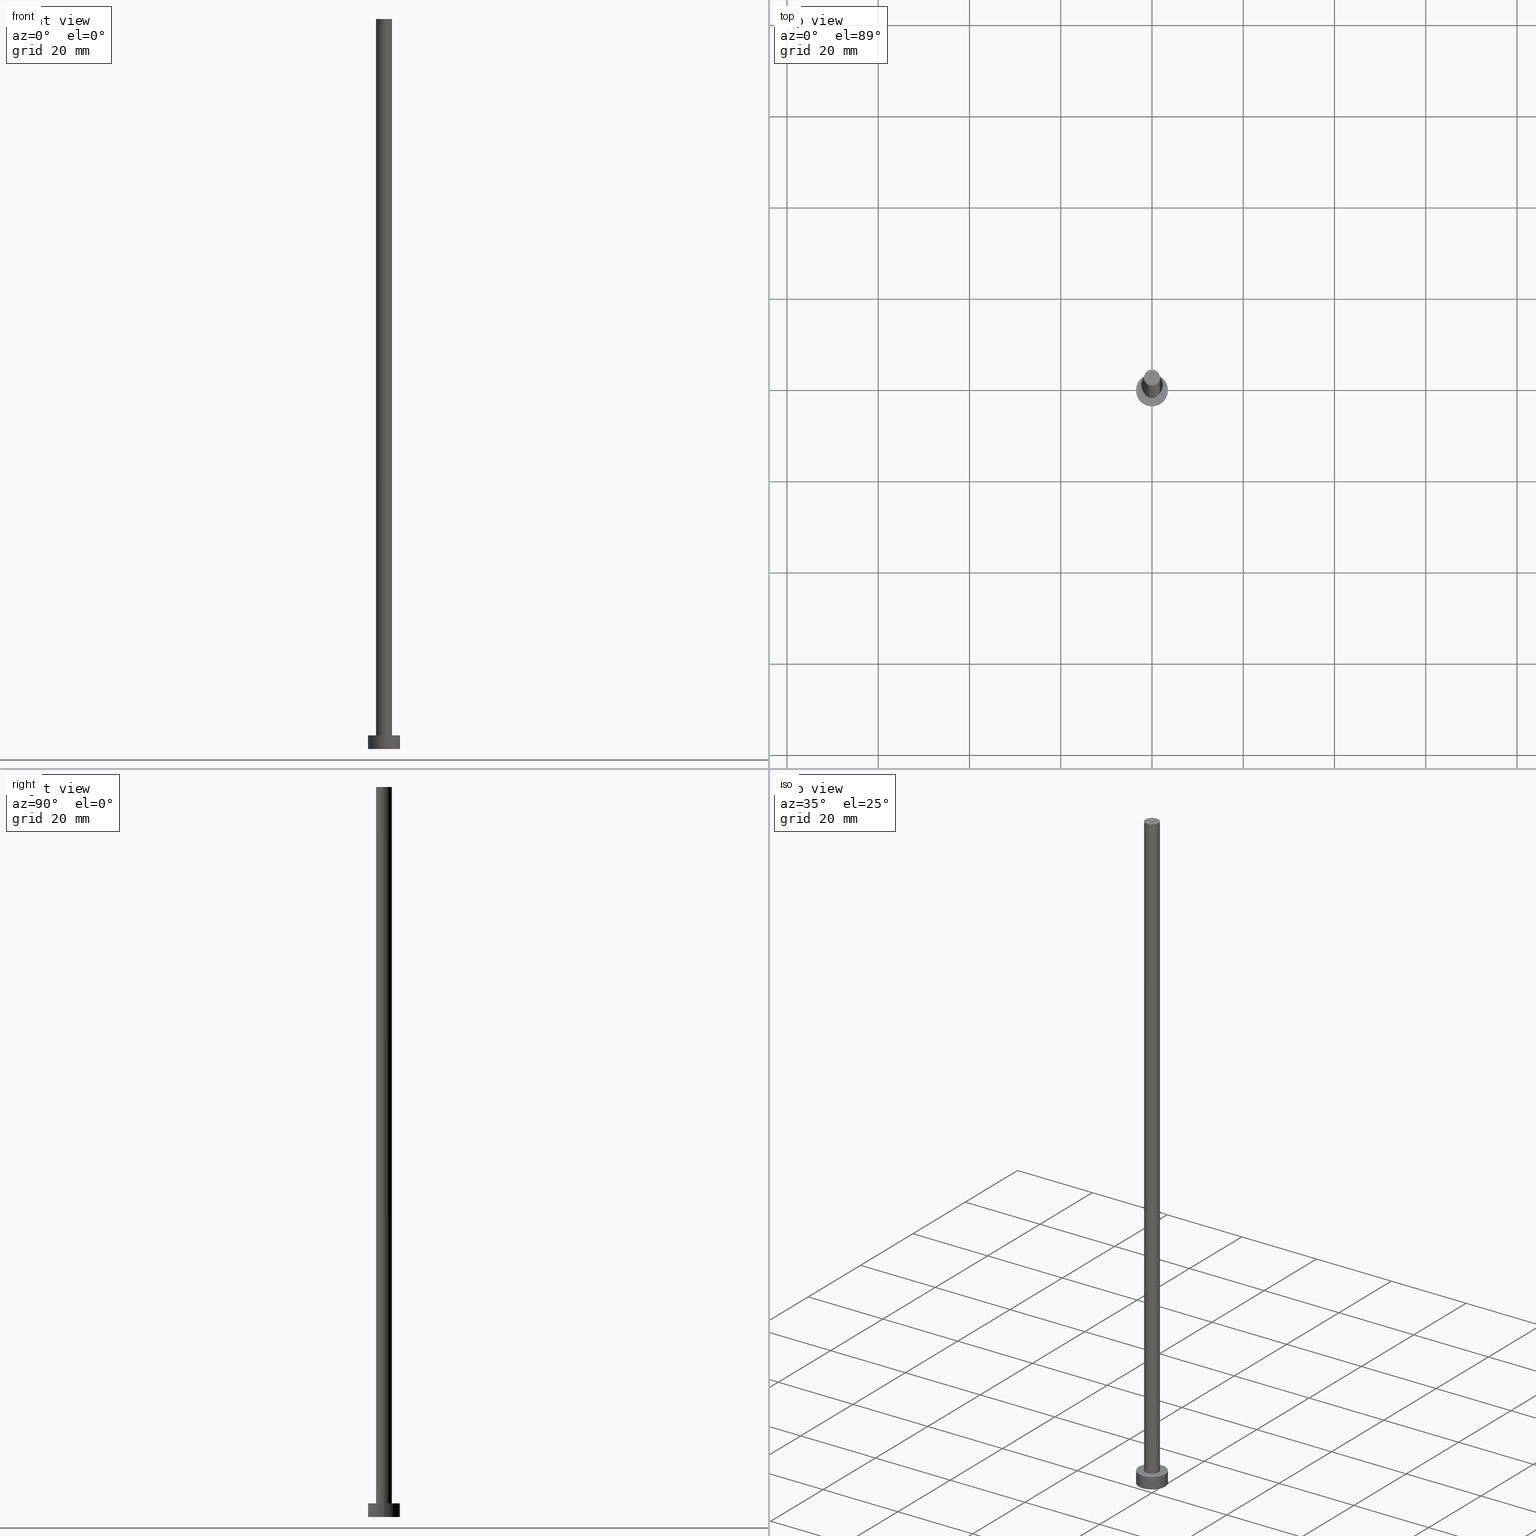
[diagram: canonical four-view strip — front | top / right | iso, engineering-drawing reading convention]
A machine part, canonical four-view strip (front | top / right | iso — engineering-drawing reading convention). The complete STEP part file that produces these views, byte-faithful:
ISO-10303-21;
HEADER;
FILE_DESCRIPTION (( 'STEP AP203' ),
    '1' );
FILE_NAME ('0961.STEP',
    '2023-02-13T16:23:46',
    ( '' ),
    ( '' ),
    'SwSTEP 2.0',
    'SolidWorks 2019',
    '' );
FILE_SCHEMA (( 'CONFIG_CONTROL_DESIGN' ));
ENDSEC;

DATA;
#1 = LINE ( 'NONE', #70, #68 ) ;
#2 = CC_DESIGN_PERSON_AND_ORGANIZATION_ASSIGNMENT ( #127, #28, ( #182 ) ) ;
#3 = ADVANCED_FACE ( 'NONE', ( #18 ), #232, .T. ) ;
#4 = DIRECTION ( 'NONE',  ( 1.000000000000000000, 0.000000000000000000, 0.000000000000000000 ) ) ;
#5 = DIRECTION ( 'NONE',  ( 1.000000000000000000, 0.000000000000000000, 0.000000000000000000 ) ) ;
#6 = COORDINATED_UNIVERSAL_TIME_OFFSET ( 1, 0, .AHEAD. ) ;
#7 = DATE_AND_TIME ( #26, #22 ) ;
#8 = CIRCLE ( 'NONE', #241, 1.750000000000000000 ) ;
#9 = EDGE_CURVE ( 'NONE', #39, #59, #228, .T. ) ;
#10 = ORIENTED_EDGE ( 'NONE', *, *, #132, .F. ) ;
#11 = LOCAL_TIME ( 17, 23, 46.00000000000000000, #168 ) ;
#12 = CC_DESIGN_SECURITY_CLASSIFICATION ( #144, ( #182 ) ) ;
#13 = PRODUCT ( '0961', '0961', '', ( #191 ) ) ;
#14 = DIRECTION ( 'NONE',  ( 0.000000000000000000, 0.000000000000000000, 1.000000000000000000 ) ) ;
#15 = FACE_OUTER_BOUND ( 'NONE', #117, .T. ) ;
#16 = ORIENTED_EDGE ( 'NONE', *, *, #91, .F. ) ;
#17 = CIRCLE ( 'NONE', #60, 1.750000000000000000 ) ;
#18 = FACE_OUTER_BOUND ( 'NONE', #154, .T. ) ;
#19 = DIRECTION ( 'NONE',  ( 0.000000000000000000, 0.000000000000000000, 1.000000000000000000 ) ) ;
#20 = CC_DESIGN_PERSON_AND_ORGANIZATION_ASSIGNMENT ( #49, #221, ( #13 ) ) ;
#21 =( LENGTH_UNIT ( ) NAMED_UNIT ( * ) SI_UNIT ( .MILLI., .METRE. ) );
#22 = LOCAL_TIME ( 17, 23, 46.00000000000000000, #29 ) ;
#23 = CARTESIAN_POINT ( 'NONE',  ( 0.000000000000000000, 0.000000000000000000, 160.0000000000000000 ) ) ;
#24 = DIRECTION ( 'NONE',  ( -0.000000000000000000, -0.000000000000000000, -1.000000000000000000 ) ) ;
#25 = DIRECTION ( 'NONE',  ( 0.000000000000000000, 0.000000000000000000, 1.000000000000000000 ) ) ;
#26 = CALENDAR_DATE ( 2023, 13, 2 ) ;
#27 = AXIS2_PLACEMENT_3D ( 'NONE', #253, #87, #123 ) ;
#28 = PERSON_AND_ORGANIZATION_ROLE ( 'design_supplier' ) ;
#29 = COORDINATED_UNIVERSAL_TIME_OFFSET ( 1, 0, .AHEAD. ) ;
#30 = EDGE_CURVE ( 'NONE', #153, #195, #99, .T. ) ;
#31 = LOCAL_TIME ( 17, 23, 46.00000000000000000, #189 ) ;
#32 = DATE_TIME_ROLE ( 'classification_date' ) ;
#33 = PRODUCT_RELATED_PRODUCT_CATEGORY ( 'detail', '', ( #13 ) ) ;
#34 = DIRECTION ( 'NONE',  ( -0.000000000000000000, -0.000000000000000000, -1.000000000000000000 ) ) ;
#35 = ORIENTED_EDGE ( 'NONE', *, *, #65, .F. ) ;
#36 = LOCAL_TIME ( 17, 23, 46.00000000000000000, #89 ) ;
#37 = EDGE_LOOP ( 'NONE', ( #63, #159 ) ) ;
#38 = ORIENTED_EDGE ( 'NONE', *, *, #139, .F. ) ;
#39 = VERTEX_POINT ( 'NONE', #157 ) ;
#40 = FACE_OUTER_BOUND ( 'NONE', #78, .T. ) ;
#41 = CARTESIAN_POINT ( 'NONE',  ( 0.000000000000000000, 0.000000000000000000, 160.0000000000000000 ) ) ;
#42 = ADVANCED_FACE ( 'NONE', ( #61 ), #113, .T. ) ;
#43 = PRODUCT_DEFINITION_SHAPE ( 'NONE', 'NONE',  #227 ) ;
#44 =( NAMED_UNIT ( * ) SI_UNIT ( $, .STERADIAN. ) SOLID_ANGLE_UNIT ( ) );
#45 = AXIS2_PLACEMENT_3D ( 'NONE', #219, #218, #143 ) ;
#46 = CARTESIAN_POINT ( 'NONE',  ( 0.000000000000000000, 0.000000000000000000, 160.0000000000000000 ) ) ;
#47 = CYLINDRICAL_SURFACE ( 'NONE', #27, 3.500000000000000000 ) ;
#48 = PERSON_AND_ORGANIZATION_ROLE ( 'creator' ) ;
#49 = PERSON_AND_ORGANIZATION ( #85, #235 ) ;
#50 = AXIS2_PLACEMENT_3D ( 'NONE', #64, #237, #5 ) ;
#51 = EDGE_CURVE ( 'NONE', #195, #158, #203, .T. ) ;
#52 = DATE_AND_TIME ( #73, #243 ) ;
#53 = MANIFOLD_SOLID_BREP ( 'P�idat vysunut�m3', #128 ) ;
#54 = PERSON_AND_ORGANIZATION ( #85, #235 ) ;
#55 = DATE_AND_TIME ( #75, #11 ) ;
#56 = AXIS2_PLACEMENT_3D ( 'NONE', #201, #86, #183 ) ;
#57 = ORIENTED_EDGE ( 'NONE', *, *, #9, .F. ) ;
#58 = DIRECTION ( 'NONE',  ( 1.000000000000000000, 0.000000000000000000, 0.000000000000000000 ) ) ;
#59 = VERTEX_POINT ( 'NONE', #131 ) ;
#60 = AXIS2_PLACEMENT_3D ( 'NONE', #198, #19, #4 ) ;
#61 = FACE_OUTER_BOUND ( 'NONE', #196, .T. ) ;
#62 = ORIENTED_EDGE ( 'NONE', *, *, #65, .T. ) ;
#63 = ORIENTED_EDGE ( 'NONE', *, *, #108, .F. ) ;
#64 = CARTESIAN_POINT ( 'NONE',  ( 0.000000000000000000, 0.000000000000000000, 0.000000000000000000 ) ) ;
#65 = EDGE_CURVE ( 'NONE', #177, #153, #96, .T. ) ;
#66 = CYLINDRICAL_SURFACE ( 'NONE', #140, 1.750000000000000000 ) ;
#67 =( NAMED_UNIT ( * ) PLANE_ANGLE_UNIT ( ) SI_UNIT ( $, .RADIAN. ) );
#68 = VECTOR ( 'NONE', #24, 1000.000000000000000 ) ;
#69 = DIRECTION ( 'NONE',  ( 1.000000000000000000, 0.000000000000000000, 0.000000000000000000 ) ) ;
#70 = CARTESIAN_POINT ( 'NONE',  ( 3.500000000000000000, 4.286263797015736595E-16, 3.000000000000000000 ) ) ;
#71 = ADVANCED_FACE ( 'NONE', ( #15 ), #98, .F. ) ;
#72 = APPROVAL_DATE_TIME ( #55, #103 ) ;
#73 = CALENDAR_DATE ( 2023, 13, 2 ) ;
#74 = APPROVAL ( #92, 'NEUR�EN�' ) ;
#75 = CALENDAR_DATE ( 2023, 13, 2 ) ;
#76 = AXIS2_PLACEMENT_3D ( 'NONE', #248, #135, #217 ) ;
#77 = ORIENTED_EDGE ( 'NONE', *, *, #202, .T. ) ;
#78 = EDGE_LOOP ( 'NONE', ( #197, #79, #115, #187 ) ) ;
#79 = ORIENTED_EDGE ( 'NONE', *, *, #93, .F. ) ;
#80 = CIRCLE ( 'NONE', #50, 3.500000000000000000 ) ;
#81 = ORIENTED_EDGE ( 'NONE', *, *, #139, .T. ) ;
#82 = ORIENTED_EDGE ( 'NONE', *, *, #91, .T. ) ;
#83 = CARTESIAN_POINT ( 'NONE',  ( -1.750000000000000000, 0.000000000000000000, 160.0000000000000000 ) ) ;
#84 = DIRECTION ( 'NONE',  ( -0.000000000000000000, -0.000000000000000000, -1.000000000000000000 ) ) ;
#85 = PERSON ( 'NEUR�EN�', 'NEUR�EN�', 'NEUR�EN�', ('NEUR�EN�'), ('NEUR�EN�'), ('NEUR�EN�') ) ;
#86 = DIRECTION ( 'NONE',  ( 0.000000000000000000, 0.000000000000000000, 1.000000000000000000 ) ) ;
#87 = DIRECTION ( 'NONE',  ( -0.000000000000000000, -0.000000000000000000, -1.000000000000000000 ) ) ;
#88 = APPLICATION_CONTEXT ( 'configuration controlled 3d designs of mechanical parts and assemblies' ) ;
#89 = COORDINATED_UNIVERSAL_TIME_OFFSET ( 1, 0, .AHEAD. ) ;
#90 = APPROVAL_DATE_TIME ( #7, #105 ) ;
#91 = EDGE_CURVE ( 'NONE', #194, #39, #8, .T. ) ;
#92 = APPROVAL_STATUS ( 'not_yet_approved' ) ;
#93 = EDGE_CURVE ( 'NONE', #153, #177, #156, .T. ) ;
#94 = CARTESIAN_POINT ( 'NONE',  ( 0.000000000000000000, 0.000000000000000000, 0.000000000000000000 ) ) ;
#95 = APPLICATION_PROTOCOL_DEFINITION ( 'international standard', 'config_control_design', 1994, #124 ) ;
#96 = CIRCLE ( 'NONE', #176, 3.500000000000000000 ) ;
#97 = CARTESIAN_POINT ( 'NONE',  ( 0.000000000000000000, 0.000000000000000000, 160.0000000000000000 ) ) ;
#98 = PLANE ( 'NONE',  #76 ) ;
#99 = LINE ( 'NONE', #229, #100 ) ;
#100 = VECTOR ( 'NONE', #34, 1000.000000000000000 ) ;
#101 = CARTESIAN_POINT ( 'NONE',  ( 1.750000000000000000, 2.143131898507868297E-16, 160.0000000000000000 ) ) ;
#102 = DIRECTION ( 'NONE',  ( 0.000000000000000000, 0.000000000000000000, 1.000000000000000000 ) ) ;
#103 = APPROVAL ( #204, 'NEUR�EN�' ) ;
#104 = APPROVAL_PERSON_ORGANIZATION ( #206, #74, #150 ) ;
#105 = APPROVAL ( #146, 'NEUR�EN�' ) ;
#106 = DIRECTION ( 'NONE',  ( -0.000000000000000000, -0.000000000000000000, -1.000000000000000000 ) ) ;
#107 = CARTESIAN_POINT ( 'NONE',  ( 3.500000000000000000, 4.286263797015736595E-16, 3.000000000000000000 ) ) ;
#108 = EDGE_CURVE ( 'NONE', #247, #59, #163, .T. ) ;
#109 = DIRECTION ( 'NONE',  ( 0.000000000000000000, 0.000000000000000000, 1.000000000000000000 ) ) ;
#110 = ORIENTED_EDGE ( 'NONE', *, *, #93, .T. ) ;
#111 = PERSON_AND_ORGANIZATION_ROLE ( 'classification_officer' ) ;
#112 = DATE_AND_TIME ( #188, #36 ) ;
#113 = PLANE ( 'NONE',  #121 ) ;
#114 = APPROVAL_PERSON_ORGANIZATION ( #224, #103, #205 ) ;
#115 = ORIENTED_EDGE ( 'NONE', *, *, #30, .T. ) ;
#116 = ORIENTED_EDGE ( 'NONE', *, *, #132, .T. ) ;
#117 = EDGE_LOOP ( 'NONE', ( #250, #175 ) ) ;
#118 = EDGE_LOOP ( 'NONE', ( #57, #16, #116, #251 ) ) ;
#119 = DIRECTION ( 'NONE',  ( -1.000000000000000000, 0.000000000000000000, 0.000000000000000000 ) ) ;
#120 = CYLINDRICAL_SURFACE ( 'NONE', #211, 3.500000000000000000 ) ;
#121 = AXIS2_PLACEMENT_3D ( 'NONE', #97, #173, #226 ) ;
#122 = FACE_OUTER_BOUND ( 'NONE', #214, .T. ) ;
#123 = DIRECTION ( 'NONE',  ( -1.000000000000000000, 0.000000000000000000, 0.000000000000000000 ) ) ;
#124 = APPLICATION_CONTEXT ( 'configuration controlled 3d designs of mechanical parts and assemblies' ) ;
#125 = DATE_TIME_ROLE ( 'creation_date' ) ;
#126 = DATE_AND_TIME ( #244, #31 ) ;
#127 = PERSON_AND_ORGANIZATION ( #85, #235 ) ;
#128 = CLOSED_SHELL ( 'NONE', ( #3, #148, #252, #130, #71, #181, #42 ) ) ;
#129 = EDGE_CURVE ( 'NONE', #59, #247, #17, .T. ) ;
#130 = ADVANCED_FACE ( 'NONE', ( #145, #240 ), #236, .T. ) ;
#131 = CARTESIAN_POINT ( 'NONE',  ( 1.750000000000000000, 2.143131898507868297E-16, 3.000000000000000000 ) ) ;
#132 = EDGE_CURVE ( 'NONE', #194, #247, #255, .T. ) ;
#133 = APPROVAL_PERSON_ORGANIZATION ( #192, #105, #149 ) ;
#134 = CARTESIAN_POINT ( 'NONE',  ( 0.000000000000000000, 0.000000000000000000, 0.000000000000000000 ) ) ;
#135 = DIRECTION ( 'NONE',  ( 0.000000000000000000, 0.000000000000000000, 1.000000000000000000 ) ) ;
#136 = DESIGN_CONTEXT ( 'detailed design', #124, 'design' ) ;
#137 = ORIENTED_EDGE ( 'NONE', *, *, #30, .F. ) ;
#138 = DIRECTION ( 'NONE',  ( -0.000000000000000000, -0.000000000000000000, -1.000000000000000000 ) ) ;
#139 = EDGE_CURVE ( 'NONE', #39, #194, #234, .T. ) ;
#140 = AXIS2_PLACEMENT_3D ( 'NONE', #41, #106, #184 ) ;
#141 = CARTESIAN_POINT ( 'NONE',  ( 3.500000000000000000, 4.286263797015736595E-16, 0.000000000000000000 ) ) ;
#142 = CARTESIAN_POINT ( 'NONE',  ( -1.750000000000000000, 0.000000000000000000, 3.000000000000000000 ) ) ;
#143 = DIRECTION ( 'NONE',  ( 1.000000000000000000, 0.000000000000000000, 0.000000000000000000 ) ) ;
#144 = SECURITY_CLASSIFICATION ( '', '', #165 ) ;
#145 = FACE_BOUND ( 'NONE', #37, .T. ) ;
#146 = APPROVAL_STATUS ( 'not_yet_approved' ) ;
#147 = CC_DESIGN_DATE_AND_TIME_ASSIGNMENT ( #112, #125, ( #227 ) ) ;
#148 = ADVANCED_FACE ( 'NONE', ( #122 ), #47, .T. ) ;
#149 = APPROVAL_ROLE ( '' ) ;
#150 = APPROVAL_ROLE ( '' ) ;
#151 = PERSON_AND_ORGANIZATION_ROLE ( 'creator' ) ;
#152 = AXIS2_PLACEMENT_3D ( 'NONE', #213, #178, #155 ) ;
#153 = VERTEX_POINT ( 'NONE', #200 ) ;
#154 = EDGE_LOOP ( 'NONE', ( #38, #208, #231, #10 ) ) ;
#155 = DIRECTION ( 'NONE',  ( -1.000000000000000000, 0.000000000000000000, 0.000000000000000000 ) ) ;
#156 = CIRCLE ( 'NONE', #45, 3.500000000000000000 ) ;
#157 = CARTESIAN_POINT ( 'NONE',  ( 1.750000000000000000, 2.143131898507868297E-16, 160.0000000000000000 ) ) ;
#158 = VERTEX_POINT ( 'NONE', #141 ) ;
#159 = ORIENTED_EDGE ( 'NONE', *, *, #129, .F. ) ;
#160 = DIRECTION ( 'NONE',  ( 1.000000000000000000, 0.000000000000000000, 0.000000000000000000 ) ) ;
#161 = VECTOR ( 'NONE', #138, 1000.000000000000000 ) ;
#162 = DIRECTION ( 'NONE',  ( 1.000000000000000000, 0.000000000000000000, -0.000000000000000000 ) ) ;
#163 = CIRCLE ( 'NONE', #56, 1.750000000000000000 ) ;
#164 = CARTESIAN_POINT ( 'NONE',  ( -3.500000000000000000, 0.000000000000000000, 0.000000000000000000 ) ) ;
#165 = SECURITY_CLASSIFICATION_LEVEL ( 'unclassified' ) ;
#166 = SHAPE_DEFINITION_REPRESENTATION ( #43, #238 ) ;
#167 = CC_DESIGN_APPROVAL ( #105, ( #144 ) ) ;
#168 = COORDINATED_UNIVERSAL_TIME_OFFSET ( 1, 0, .AHEAD. ) ;
#169 = CC_DESIGN_DATE_AND_TIME_ASSIGNMENT ( #126, #32, ( #144 ) ) ;
#170 = DIRECTION ( 'NONE',  ( 1.000000000000000000, 0.000000000000000000, 0.000000000000000000 ) ) ;
#171 = PERSON_AND_ORGANIZATION ( #85, #235 ) ;
#172 = AXIS2_PLACEMENT_3D ( 'NONE', #94, #109, #170 ) ;
#173 = DIRECTION ( 'NONE',  ( 0.000000000000000000, 0.000000000000000000, 1.000000000000000000 ) ) ;
#174 = ORIENTED_EDGE ( 'NONE', *, *, #209, .T. ) ;
#175 = ORIENTED_EDGE ( 'NONE', *, *, #202, .F. ) ;
#176 = AXIS2_PLACEMENT_3D ( 'NONE', #210, #14, #212 ) ;
#177 = VERTEX_POINT ( 'NONE', #107 ) ;
#178 = DIRECTION ( 'NONE',  ( -0.000000000000000000, -0.000000000000000000, -1.000000000000000000 ) ) ;
#179 = DIRECTION ( 'NONE',  ( 0.000000000000000000, 0.000000000000000000, 1.000000000000000000 ) ) ;
#180 = CARTESIAN_POINT ( 'NONE',  ( 0.000000000000000000, 0.000000000000000000, 3.000000000000000000 ) ) ;
#181 = ADVANCED_FACE ( 'NONE', ( #242 ), #66, .T. ) ;
#182 = PRODUCT_DEFINITION_FORMATION_WITH_SPECIFIED_SOURCE ( 'LIBOVOLN�', '', #13, .NOT_KNOWN. ) ;
#183 = DIRECTION ( 'NONE',  ( 1.000000000000000000, 0.000000000000000000, 0.000000000000000000 ) ) ;
#184 = DIRECTION ( 'NONE',  ( -1.000000000000000000, 0.000000000000000000, 0.000000000000000000 ) ) ;
#185 = CARTESIAN_POINT ( 'NONE',  ( -1.750000000000000000, 0.000000000000000000, 160.0000000000000000 ) ) ;
#186 = AXIS2_PLACEMENT_3D ( 'NONE', #134, #246, #58 ) ;
#187 = ORIENTED_EDGE ( 'NONE', *, *, #51, .T. ) ;
#188 = CALENDAR_DATE ( 2023, 13, 2 ) ;
#189 = COORDINATED_UNIVERSAL_TIME_OFFSET ( 1, 0, .AHEAD. ) ;
#190 = VECTOR ( 'NONE', #215, 1000.000000000000000 ) ;
#191 = MECHANICAL_CONTEXT ( 'NONE', #88, 'mechanical' ) ;
#192 = PERSON_AND_ORGANIZATION ( #85, #235 ) ;
#193 = EDGE_LOOP ( 'NONE', ( #110, #62 ) ) ;
#194 = VERTEX_POINT ( 'NONE', #185 ) ;
#195 = VERTEX_POINT ( 'NONE', #164 ) ;
#196 = EDGE_LOOP ( 'NONE', ( #82, #81 ) ) ;
#197 = ORIENTED_EDGE ( 'NONE', *, *, #209, .F. ) ;
#198 = CARTESIAN_POINT ( 'NONE',  ( 0.000000000000000000, 0.000000000000000000, 3.000000000000000000 ) ) ;
#199 = CARTESIAN_POINT ( 'NONE',  ( 0.000000000000000000, 0.000000000000000000, 3.000000000000000000 ) ) ;
#200 = CARTESIAN_POINT ( 'NONE',  ( -3.500000000000000000, 0.000000000000000000, 3.000000000000000000 ) ) ;
#201 = CARTESIAN_POINT ( 'NONE',  ( 0.000000000000000000, 0.000000000000000000, 3.000000000000000000 ) ) ;
#202 = EDGE_CURVE ( 'NONE', #158, #195, #80, .T. ) ;
#203 = CIRCLE ( 'NONE', #186, 3.500000000000000000 ) ;
#204 = APPROVAL_STATUS ( 'not_yet_approved' ) ;
#205 = APPROVAL_ROLE ( '' ) ;
#206 = PERSON_AND_ORGANIZATION ( #85, #235 ) ;
#207 = PERSON_AND_ORGANIZATION ( #85, #235 ) ;
#208 = ORIENTED_EDGE ( 'NONE', *, *, #9, .T. ) ;
#209 = EDGE_CURVE ( 'NONE', #177, #158, #1, .T. ) ;
#210 = CARTESIAN_POINT ( 'NONE',  ( 0.000000000000000000, 0.000000000000000000, 3.000000000000000000 ) ) ;
#211 = AXIS2_PLACEMENT_3D ( 'NONE', #199, #84, #119 ) ;
#212 = DIRECTION ( 'NONE',  ( 1.000000000000000000, 0.000000000000000000, 0.000000000000000000 ) ) ;
#213 = CARTESIAN_POINT ( 'NONE',  ( 0.000000000000000000, 0.000000000000000000, 160.0000000000000000 ) ) ;
#214 = EDGE_LOOP ( 'NONE', ( #35, #174, #77, #137 ) ) ;
#215 = DIRECTION ( 'NONE',  ( -0.000000000000000000, -0.000000000000000000, -1.000000000000000000 ) ) ;
#216 = CC_DESIGN_PERSON_AND_ORGANIZATION_ASSIGNMENT ( #54, #48, ( #227 ) ) ;
#217 = DIRECTION ( 'NONE',  ( 1.000000000000000000, 0.000000000000000000, -0.000000000000000000 ) ) ;
#218 = DIRECTION ( 'NONE',  ( 0.000000000000000000, 0.000000000000000000, 1.000000000000000000 ) ) ;
#219 = CARTESIAN_POINT ( 'NONE',  ( 0.000000000000000000, 0.000000000000000000, 3.000000000000000000 ) ) ;
#220 = APPLICATION_PROTOCOL_DEFINITION ( 'international standard', 'config_control_design', 1994, #88 ) ;
#221 = PERSON_AND_ORGANIZATION_ROLE ( 'design_owner' ) ;
#222 =( GEOMETRIC_REPRESENTATION_CONTEXT ( 3 ) GLOBAL_UNCERTAINTY_ASSIGNED_CONTEXT ( ( #233 ) ) GLOBAL_UNIT_ASSIGNED_CONTEXT ( ( #21, #67, #44 ) ) REPRESENTATION_CONTEXT ( 'NONE', 'WORKASPACE' ) );
#223 = APPROVAL_DATE_TIME ( #52, #74 ) ;
#224 = PERSON_AND_ORGANIZATION ( #85, #235 ) ;
#225 = AXIS2_PLACEMENT_3D ( 'NONE', #180, #179, #162 ) ;
#226 = DIRECTION ( 'NONE',  ( 1.000000000000000000, 0.000000000000000000, -0.000000000000000000 ) ) ;
#227 = PRODUCT_DEFINITION ( 'NEZN�M�', '', #182, #136 ) ;
#228 = LINE ( 'NONE', #101, #161 ) ;
#229 = CARTESIAN_POINT ( 'NONE',  ( -3.500000000000000000, 0.000000000000000000, 3.000000000000000000 ) ) ;
#230 = CC_DESIGN_PERSON_AND_ORGANIZATION_ASSIGNMENT ( #171, #151, ( #182 ) ) ;
#231 = ORIENTED_EDGE ( 'NONE', *, *, #129, .T. ) ;
#232 = CYLINDRICAL_SURFACE ( 'NONE', #152, 1.750000000000000000 ) ;
#233 = UNCERTAINTY_MEASURE_WITH_UNIT (LENGTH_MEASURE( 1.000000000000000082E-05 ), #21, 'distance_accuracy_value', 'NONE');
#234 = CIRCLE ( 'NONE', #245, 1.750000000000000000 ) ;
#235 = ORGANIZATION ( 'NEUR�EN�', 'NEUR�EN�', '' ) ;
#236 = PLANE ( 'NONE',  #225 ) ;
#237 = DIRECTION ( 'NONE',  ( 0.000000000000000000, 0.000000000000000000, 1.000000000000000000 ) ) ;
#238 = ADVANCED_BREP_SHAPE_REPRESENTATION ( '0961', ( #53, #172 ), #222 ) ;
#239 = CC_DESIGN_PERSON_AND_ORGANIZATION_ASSIGNMENT ( #207, #111, ( #144 ) ) ;
#240 = FACE_OUTER_BOUND ( 'NONE', #193, .T. ) ;
#241 = AXIS2_PLACEMENT_3D ( 'NONE', #23, #102, #160 ) ;
#242 = FACE_OUTER_BOUND ( 'NONE', #118, .T. ) ;
#243 = LOCAL_TIME ( 17, 23, 46.00000000000000000, #6 ) ;
#244 = CALENDAR_DATE ( 2023, 13, 2 ) ;
#245 = AXIS2_PLACEMENT_3D ( 'NONE', #46, #25, #69 ) ;
#246 = DIRECTION ( 'NONE',  ( 0.000000000000000000, 0.000000000000000000, 1.000000000000000000 ) ) ;
#247 = VERTEX_POINT ( 'NONE', #142 ) ;
#248 = CARTESIAN_POINT ( 'NONE',  ( 0.000000000000000000, 0.000000000000000000, 0.000000000000000000 ) ) ;
#249 = CC_DESIGN_APPROVAL ( #74, ( #182 ) ) ;
#250 = ORIENTED_EDGE ( 'NONE', *, *, #51, .F. ) ;
#251 = ORIENTED_EDGE ( 'NONE', *, *, #108, .T. ) ;
#252 = ADVANCED_FACE ( 'NONE', ( #40 ), #120, .T. ) ;
#253 = CARTESIAN_POINT ( 'NONE',  ( 0.000000000000000000, 0.000000000000000000, 3.000000000000000000 ) ) ;
#254 = CC_DESIGN_APPROVAL ( #103, ( #227 ) ) ;
#255 = LINE ( 'NONE', #83, #190 ) ;
ENDSEC;
END-ISO-10303-21;
